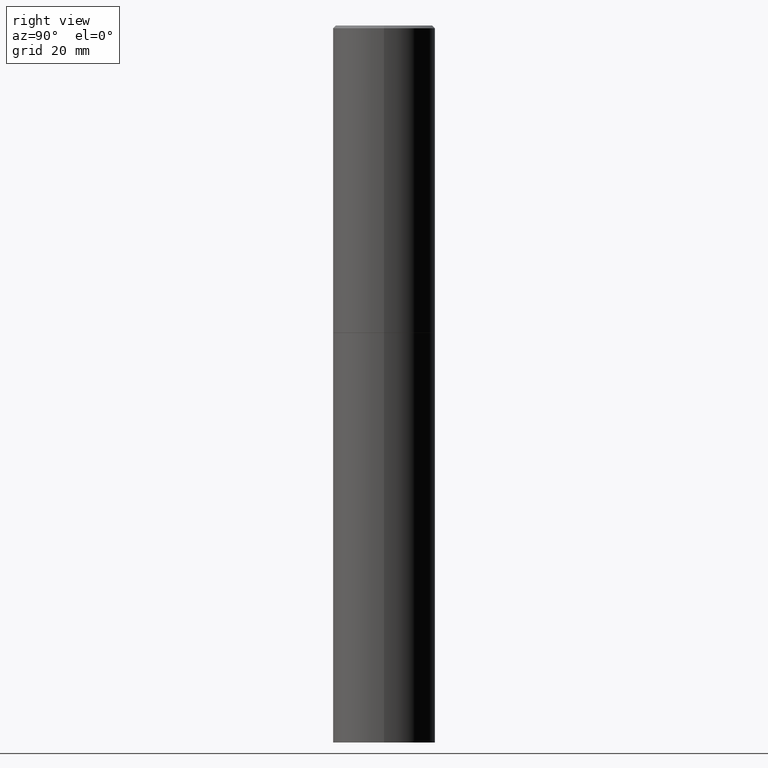
[diagram: clean part render]
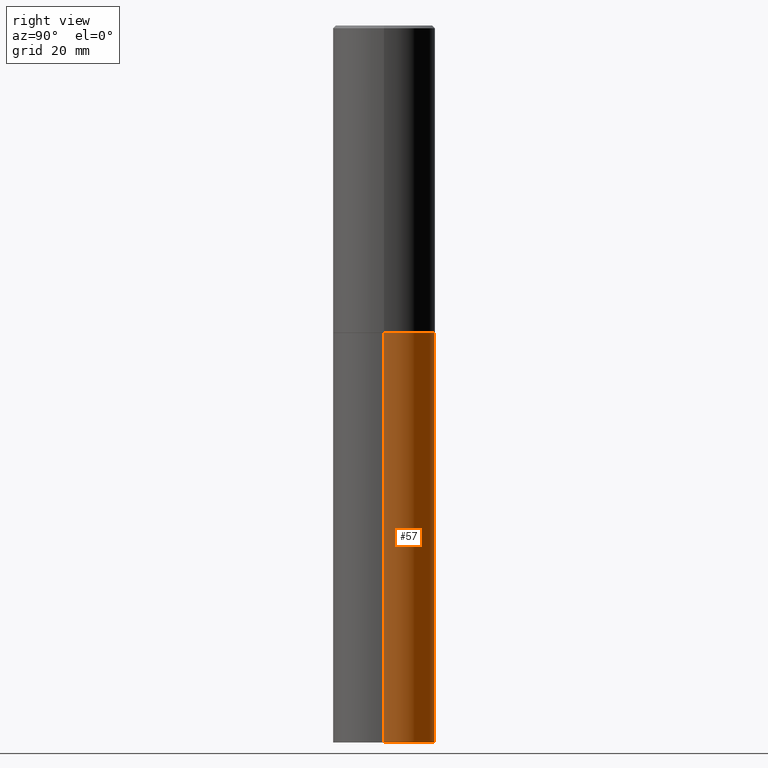
[diagram: same view with one face highlighted and labeled with its STEP entity id]
A machine part, right view. The second image highlights one B-rep face of the part: STEP entity #57.
In plain terms, the highlighted cylindrical surface (partial cylindrical patch) has radius 9.525 mm, axis along (-0, 0, 1).
Its self-contained STEP definition (entity closure, byte-faithful):
#10 = DIRECTION ( 'NONE',  ( -2.445468806185136597E-29, 3.491481338843145583E-15, 1.000000000000000000 ) ) ;
#32 = AXIS2_PLACEMENT_3D ( 'NONE', #122, #93, #229 ) ;
#34 = DIRECTION ( 'NONE',  ( 1.000000000000000000, -6.982962677686264344E-15, 0.000000000000000000 ) ) ;
#35 = EDGE_CURVE ( 'NONE', #86, #264, #214, .T. ) ;
#36 = FACE_OUTER_BOUND ( 'NONE', #135, .T. ) ;
#46 = EDGE_CURVE ( 'NONE', #107, #155, #186, .T. ) ;
#57 = ADVANCED_FACE ( 'NONE', ( #36 ), #149, .T. ) ;
#65 = LINE ( 'NONE', #174, #237 ) ;
#86 = VERTEX_POINT ( 'NONE', #336 ) ;
#93 = DIRECTION ( 'NONE',  ( -2.445468806185136597E-29, 3.491481338843145583E-15, 1.000000000000000000 ) ) ;
#101 = AXIS2_PLACEMENT_3D ( 'NONE', #228, #10, #34 ) ;
#107 = VERTEX_POINT ( 'NONE', #202 ) ;
#112 = EDGE_CURVE ( 'NONE', #264, #155, #65, .T. ) ;
#120 = DIRECTION ( 'NONE',  ( 1.000000000000000000, -6.982962677686261189E-15, 0.000000000000000000 ) ) ;
#122 = CARTESIAN_POINT ( 'NONE',  ( 0.000000000000000000, 0.000000000000000000, 0.000000000000000000 ) ) ;
#126 = CARTESIAN_POINT ( 'NONE',  ( -0.3750000000000000555, -1.042851976156142014E-14, -2.250000000000000000 ) ) ;
#128 = ORIENTED_EDGE ( 'NONE', *, *, #46, .F. ) ;
#134 = CARTESIAN_POINT ( 'NONE',  ( -0.3750000000000000555, -1.042851976156142014E-14, -5.250000000000000000 ) ) ;
#135 = EDGE_LOOP ( 'NONE', ( #236, #205, #128, #185 ) ) ;
#136 = LINE ( 'NONE', #209, #349 ) ;
#149 = CYLINDRICAL_SURFACE ( 'NONE', #32, 0.3750000000000000555 ) ;
#155 = VERTEX_POINT ( 'NONE', #126 ) ;
#162 = DIRECTION ( 'NONE',  ( -2.445468806185136877E-29, 3.491481338843145188E-15, 1.000000000000000000 ) ) ;
#174 = CARTESIAN_POINT ( 'NONE',  ( -0.3750000000000000555, 2.664535259100376091E-15, -1.844600658845589598E-29 ) ) ;
#183 = EDGE_CURVE ( 'NONE', #86, #107, #136, .T. ) ;
#185 = ORIENTED_EDGE ( 'NONE', *, *, #183, .F. ) ;
#186 = CIRCLE ( 'NONE', #101, 0.3750000000000000555 ) ;
#199 = DIRECTION ( 'NONE',  ( -2.445468806185136597E-29, 3.491481338843145583E-15, 1.000000000000000000 ) ) ;
#202 = CARTESIAN_POINT ( 'NONE',  ( 0.3750000000000000555, -1.047444401652942689E-14, -2.250000000000000000 ) ) ;
#205 = ORIENTED_EDGE ( 'NONE', *, *, #112, .T. ) ;
#206 = AXIS2_PLACEMENT_3D ( 'NONE', #284, #199, #120 ) ;
#209 = CARTESIAN_POINT ( 'NONE',  ( 0.3750000000000000555, -2.618611004132350016E-15, 1.828566290923476203E-29 ) ) ;
#214 = CIRCLE ( 'NONE', #206, 0.3750000000000000555 ) ;
#228 = CARTESIAN_POINT ( 'NONE',  ( 5.502304813916557343E-29, -7.855833012397078448E-15, -2.250000000000000000 ) ) ;
#229 = DIRECTION ( 'NONE',  ( 1.000000000000000000, -6.982962677686265922E-15, 4.876176775795935793E-29 ) ) ;
#236 = ORIENTED_EDGE ( 'NONE', *, *, #35, .T. ) ;
#237 = VECTOR ( 'NONE', #287, 39.37007874015748143 ) ;
#264 = VERTEX_POINT ( 'NONE', #134 ) ;
#284 = CARTESIAN_POINT ( 'NONE',  ( 1.283871123247196713E-28, -1.833027702892651322E-14, -5.250000000000000000 ) ) ;
#287 = DIRECTION ( 'NONE',  ( -2.445468806185136877E-29, 3.491481338843145188E-15, 1.000000000000000000 ) ) ;
#336 = CARTESIAN_POINT ( 'NONE',  ( 0.3750000000000000555, -2.094888803305886324E-14, -5.250000000000000000 ) ) ;
#349 = VECTOR ( 'NONE', #162, 39.37007874015748143 ) ;